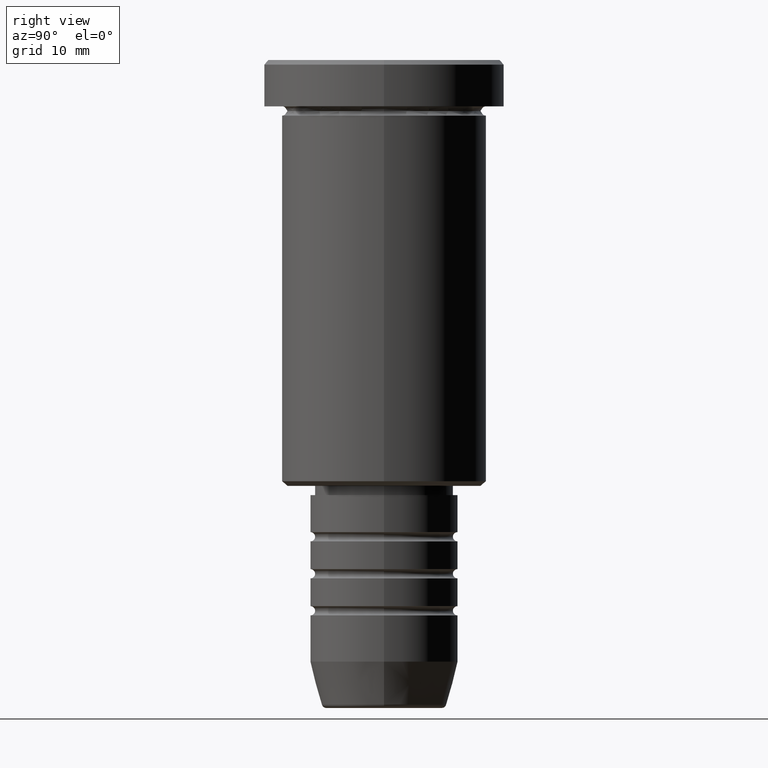
[diagram: clean part render]
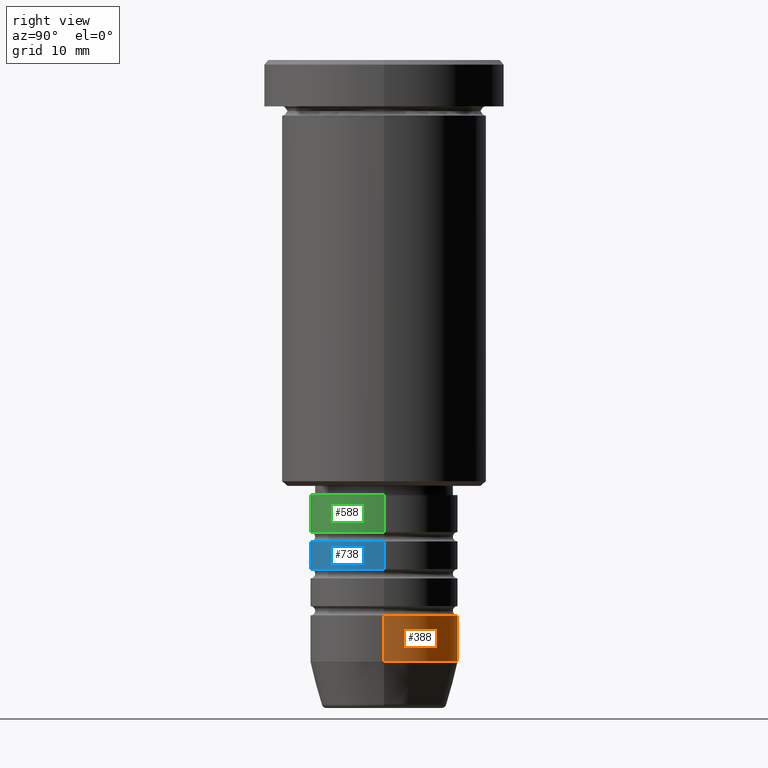
[diagram: same view with three faces highlighted in distinct colors, each labeled with its STEP entity id]
A machine part, right view with three faces highlighted in distinct colors.
Their STEP definitions:

[orange] entity #388 — the highlighted cylindrical surface (partial cylindrical patch) has radius 8 mm, axis along (-0, -0, 1).
#7 = VECTOR ( 'NONE', #664, 1000.000000000000000 ) ;
#21 = DIRECTION ( 'NONE',  ( -0.000000000000000000, -0.000000000000000000, 1.000000000000000000 ) ) ;
#94 = ORIENTED_EDGE ( 'NONE', *, *, #1118, .F. ) ;
#98 = DIRECTION ( 'NONE',  ( 1.000000000000000000, 0.000000000000000000, 0.000000000000000000 ) ) ;
#105 = LINE ( 'NONE', #840, #131 ) ;
#130 = VERTEX_POINT ( 'NONE', #726 ) ;
#131 = VECTOR ( 'NONE', #979, 1000.000000000000000 ) ;
#190 = ORIENTED_EDGE ( 'NONE', *, *, #506, .T. ) ;
#253 = ORIENTED_EDGE ( 'NONE', *, *, #474, .T. ) ;
#293 = CARTESIAN_POINT ( 'NONE',  ( -8.000000000000000000, 9.797174393178825657E-16, 0.000000000000000000 ) ) ;
#348 = FACE_OUTER_BOUND ( 'NONE', #1031, .T. ) ;
#380 = DIRECTION ( 'NONE',  ( -0.000000000000000000, -0.000000000000000000, 1.000000000000000000 ) ) ;
#388 = ADVANCED_FACE ( 'NONE', ( #348 ), #1088, .T. ) ;
#442 = DIRECTION ( 'NONE',  ( 1.000000000000000000, 0.000000000000000000, 0.000000000000000000 ) ) ;
#474 = EDGE_CURVE ( 'NONE', #582, #130, #771, .T. ) ;
#499 = AXIS2_PLACEMENT_3D ( 'NONE', #634, #999, #442 ) ;
#506 = EDGE_CURVE ( 'NONE', #130, #737, #1120, .T. ) ;
#530 = VERTEX_POINT ( 'NONE', #573 ) ;
#531 = EDGE_CURVE ( 'NONE', #582, #530, #105, .T. ) ;
#573 = CARTESIAN_POINT ( 'NONE',  ( 8.000000000000000000, 0.000000000000000000, -60.00000000000000711 ) ) ;
#582 = VERTEX_POINT ( 'NONE', #584 ) ;
#584 = CARTESIAN_POINT ( 'NONE',  ( 8.000000000000000000, 0.000000000000000000, -65.00000000000000000 ) ) ;
#593 = DIRECTION ( 'NONE',  ( 1.000000000000000000, 0.000000000000000000, 0.000000000000000000 ) ) ;
#634 = CARTESIAN_POINT ( 'NONE',  ( 0.000000000000000000, 0.000000000000000000, 0.000000000000000000 ) ) ;
#664 = DIRECTION ( 'NONE',  ( -0.000000000000000000, -0.000000000000000000, 1.000000000000000000 ) ) ;
#678 = ORIENTED_EDGE ( 'NONE', *, *, #531, .F. ) ;
#726 = CARTESIAN_POINT ( 'NONE',  ( -8.000000000000000000, 9.797174393178825657E-16, -65.00000000000000000 ) ) ;
#737 = VERTEX_POINT ( 'NONE', #1154 ) ;
#771 = CIRCLE ( 'NONE', #915, 8.000000000000000000 ) ;
#774 = AXIS2_PLACEMENT_3D ( 'NONE', #863, #21, #593 ) ;
#840 = CARTESIAN_POINT ( 'NONE',  ( 8.000000000000000000, 0.000000000000000000, 0.000000000000000000 ) ) ;
#863 = CARTESIAN_POINT ( 'NONE',  ( 0.000000000000000000, 0.000000000000000000, -60.00000000000000711 ) ) ;
#915 = AXIS2_PLACEMENT_3D ( 'NONE', #1030, #380, #98 ) ;
#979 = DIRECTION ( 'NONE',  ( -0.000000000000000000, -0.000000000000000000, 1.000000000000000000 ) ) ;
#991 = CIRCLE ( 'NONE', #774, 8.000000000000000000 ) ;
#999 = DIRECTION ( 'NONE',  ( -0.000000000000000000, -0.000000000000000000, 1.000000000000000000 ) ) ;
#1030 = CARTESIAN_POINT ( 'NONE',  ( 0.000000000000000000, 0.000000000000000000, -65.00000000000000000 ) ) ;
#1031 = EDGE_LOOP ( 'NONE', ( #253, #190, #94, #678 ) ) ;
#1088 = CYLINDRICAL_SURFACE ( 'NONE', #499, 8.000000000000000000 ) ;
#1118 = EDGE_CURVE ( 'NONE', #530, #737, #991, .T. ) ;
#1120 = LINE ( 'NONE', #293, #7 ) ;
#1154 = CARTESIAN_POINT ( 'NONE',  ( -8.000000000000000000, 9.797174393178825657E-16, -60.00000000000000711 ) ) ;

[blue] entity #738 — the highlighted cylindrical surface (partial cylindrical patch) has radius 8 mm, axis along (-0, -0, 1).
#2 = LINE ( 'NONE', #824, #543 ) ;
#74 = CARTESIAN_POINT ( 'NONE',  ( 8.000000000000000000, 0.000000000000000000, -52.00000000000000000 ) ) ;
#123 = FACE_OUTER_BOUND ( 'NONE', #1095, .T. ) ;
#133 = EDGE_CURVE ( 'NONE', #212, #787, #604, .T. ) ;
#212 = VERTEX_POINT ( 'NONE', #875 ) ;
#316 = CARTESIAN_POINT ( 'NONE',  ( 0.000000000000000000, 0.000000000000000000, 0.000000000000000000 ) ) ;
#322 = CYLINDRICAL_SURFACE ( 'NONE', #735, 8.000000000000001776 ) ;
#377 = ORIENTED_EDGE ( 'NONE', *, *, #133, .T. ) ;
#395 = VERTEX_POINT ( 'NONE', #74 ) ;
#401 = EDGE_CURVE ( 'NONE', #787, #395, #2, .T. ) ;
#413 = CARTESIAN_POINT ( 'NONE',  ( 0.000000000000000000, 0.000000000000000000, -52.00000000000000000 ) ) ;
#490 = DIRECTION ( 'NONE',  ( 1.000000000000000000, 0.000000000000000000, 0.000000000000000000 ) ) ;
#508 = CARTESIAN_POINT ( 'NONE',  ( 8.000000000000003553, 0.000000000000000000, -54.99999999999999289 ) ) ;
#513 = DIRECTION ( 'NONE',  ( 1.000000000000000000, 0.000000000000000000, 0.000000000000000000 ) ) ;
#543 = VECTOR ( 'NONE', #941, 1000.000000000000000 ) ;
#604 = CIRCLE ( 'NONE', #789, 8.000000000000003553 ) ;
#610 = ORIENTED_EDGE ( 'NONE', *, *, #401, .T. ) ;
#659 = ORIENTED_EDGE ( 'NONE', *, *, #761, .F. ) ;
#667 = CARTESIAN_POINT ( 'NONE',  ( -8.000000000000001776, 9.797174393178827630E-16, 0.000000000000000000 ) ) ;
#669 = CIRCLE ( 'NONE', #757, 8.000000000000000000 ) ;
#673 = VERTEX_POINT ( 'NONE', #921 ) ;
#694 = DIRECTION ( 'NONE',  ( -0.000000000000000000, -0.000000000000000000, 1.000000000000000000 ) ) ;
#701 = VECTOR ( 'NONE', #744, 1000.000000000000000 ) ;
#735 = AXIS2_PLACEMENT_3D ( 'NONE', #316, #694, #513 ) ;
#738 = ADVANCED_FACE ( 'NONE', ( #123 ), #322, .T. ) ;
#744 = DIRECTION ( 'NONE',  ( -0.000000000000000000, -0.000000000000000000, 1.000000000000000000 ) ) ;
#757 = AXIS2_PLACEMENT_3D ( 'NONE', #413, #1066, #490 ) ;
#761 = EDGE_CURVE ( 'NONE', #673, #395, #669, .T. ) ;
#787 = VERTEX_POINT ( 'NONE', #508 ) ;
#789 = AXIS2_PLACEMENT_3D ( 'NONE', #804, #1167, #1087 ) ;
#804 = CARTESIAN_POINT ( 'NONE',  ( 0.000000000000000000, 0.000000000000000000, -54.99999999999999289 ) ) ;
#824 = CARTESIAN_POINT ( 'NONE',  ( 8.000000000000001776, 0.000000000000000000, 0.000000000000000000 ) ) ;
#866 = ORIENTED_EDGE ( 'NONE', *, *, #910, .F. ) ;
#875 = CARTESIAN_POINT ( 'NONE',  ( -8.000000000000003553, 9.797174393178829602E-16, -54.99999999999999289 ) ) ;
#910 = EDGE_CURVE ( 'NONE', #212, #673, #929, .T. ) ;
#921 = CARTESIAN_POINT ( 'NONE',  ( -8.000000000000000000, 9.797174393178827630E-16, -52.00000000000000000 ) ) ;
#929 = LINE ( 'NONE', #667, #701 ) ;
#941 = DIRECTION ( 'NONE',  ( -0.000000000000000000, -0.000000000000000000, 1.000000000000000000 ) ) ;
#1066 = DIRECTION ( 'NONE',  ( -0.000000000000000000, -0.000000000000000000, 1.000000000000000000 ) ) ;
#1087 = DIRECTION ( 'NONE',  ( 1.000000000000000000, 0.000000000000000000, 0.000000000000000000 ) ) ;
#1095 = EDGE_LOOP ( 'NONE', ( #866, #377, #610, #659 ) ) ;
#1167 = DIRECTION ( 'NONE',  ( -0.000000000000000000, -0.000000000000000000, 1.000000000000000000 ) ) ;

[green] entity #588 — the highlighted cylindrical surface (partial cylindrical patch) has radius 8 mm, axis along (-0, -0, 1).
#18 = VERTEX_POINT ( 'NONE', #818 ) ;
#73 = CARTESIAN_POINT ( 'NONE',  ( 0.000000000000000000, 0.000000000000000000, -47.00000000000000000 ) ) ;
#112 = CIRCLE ( 'NONE', #755, 8.000000000000000000 ) ;
#137 = EDGE_CURVE ( 'NONE', #18, #1112, #112, .T. ) ;
#155 = CARTESIAN_POINT ( 'NONE',  ( 0.000000000000000000, 0.000000000000000000, -51.00000000000000000 ) ) ;
#197 = ORIENTED_EDGE ( 'NONE', *, *, #712, .F. ) ;
#215 = DIRECTION ( 'NONE',  ( -0.000000000000000000, -0.000000000000000000, 1.000000000000000000 ) ) ;
#217 = VERTEX_POINT ( 'NONE', #411 ) ;
#224 = FACE_OUTER_BOUND ( 'NONE', #429, .T. ) ;
#230 = VECTOR ( 'NONE', #215, 1000.000000000000000 ) ;
#258 = VERTEX_POINT ( 'NONE', #504 ) ;
#300 = LINE ( 'NONE', #587, #230 ) ;
#411 = CARTESIAN_POINT ( 'NONE',  ( 8.000000000000000000, 0.000000000000000000, -51.00000000000000000 ) ) ;
#418 = LINE ( 'NONE', #1053, #828 ) ;
#429 = EDGE_LOOP ( 'NONE', ( #197, #835, #796, #1142 ) ) ;
#439 = DIRECTION ( 'NONE',  ( -0.000000000000000000, -0.000000000000000000, 1.000000000000000000 ) ) ;
#447 = DIRECTION ( 'NONE',  ( 1.000000000000000000, 0.000000000000000000, 0.000000000000000000 ) ) ;
#504 = CARTESIAN_POINT ( 'NONE',  ( -8.000000000000000000, 9.797174393178825657E-16, -51.00000000000000000 ) ) ;
#575 = EDGE_CURVE ( 'NONE', #217, #1112, #418, .T. ) ;
#587 = CARTESIAN_POINT ( 'NONE',  ( -8.000000000000000000, 9.797174393178825657E-16, 0.000000000000000000 ) ) ;
#588 = ADVANCED_FACE ( 'NONE', ( #224 ), #602, .T. ) ;
#602 = CYLINDRICAL_SURFACE ( 'NONE', #1082, 8.000000000000000000 ) ;
#645 = AXIS2_PLACEMENT_3D ( 'NONE', #155, #897, #447 ) ;
#674 = DIRECTION ( 'NONE',  ( -0.000000000000000000, -0.000000000000000000, 1.000000000000000000 ) ) ;
#685 = CARTESIAN_POINT ( 'NONE',  ( 8.000000000000000000, 0.000000000000000000, -47.00000000000000000 ) ) ;
#705 = DIRECTION ( 'NONE',  ( 1.000000000000000000, 0.000000000000000000, 0.000000000000000000 ) ) ;
#712 = EDGE_CURVE ( 'NONE', #258, #18, #300, .T. ) ;
#755 = AXIS2_PLACEMENT_3D ( 'NONE', #73, #439, #1090 ) ;
#796 = ORIENTED_EDGE ( 'NONE', *, *, #575, .T. ) ;
#798 = CARTESIAN_POINT ( 'NONE',  ( 0.000000000000000000, 0.000000000000000000, 0.000000000000000000 ) ) ;
#817 = EDGE_CURVE ( 'NONE', #258, #217, #917, .T. ) ;
#818 = CARTESIAN_POINT ( 'NONE',  ( -8.000000000000000000, 9.797174393178825657E-16, -47.00000000000000000 ) ) ;
#828 = VECTOR ( 'NONE', #674, 1000.000000000000000 ) ;
#835 = ORIENTED_EDGE ( 'NONE', *, *, #817, .T. ) ;
#895 = DIRECTION ( 'NONE',  ( -0.000000000000000000, -0.000000000000000000, 1.000000000000000000 ) ) ;
#897 = DIRECTION ( 'NONE',  ( -0.000000000000000000, -0.000000000000000000, 1.000000000000000000 ) ) ;
#917 = CIRCLE ( 'NONE', #645, 8.000000000000000000 ) ;
#1053 = CARTESIAN_POINT ( 'NONE',  ( 8.000000000000000000, 0.000000000000000000, 0.000000000000000000 ) ) ;
#1082 = AXIS2_PLACEMENT_3D ( 'NONE', #798, #895, #705 ) ;
#1090 = DIRECTION ( 'NONE',  ( 1.000000000000000000, 0.000000000000000000, 0.000000000000000000 ) ) ;
#1112 = VERTEX_POINT ( 'NONE', #685 ) ;
#1142 = ORIENTED_EDGE ( 'NONE', *, *, #137, .F. ) ;